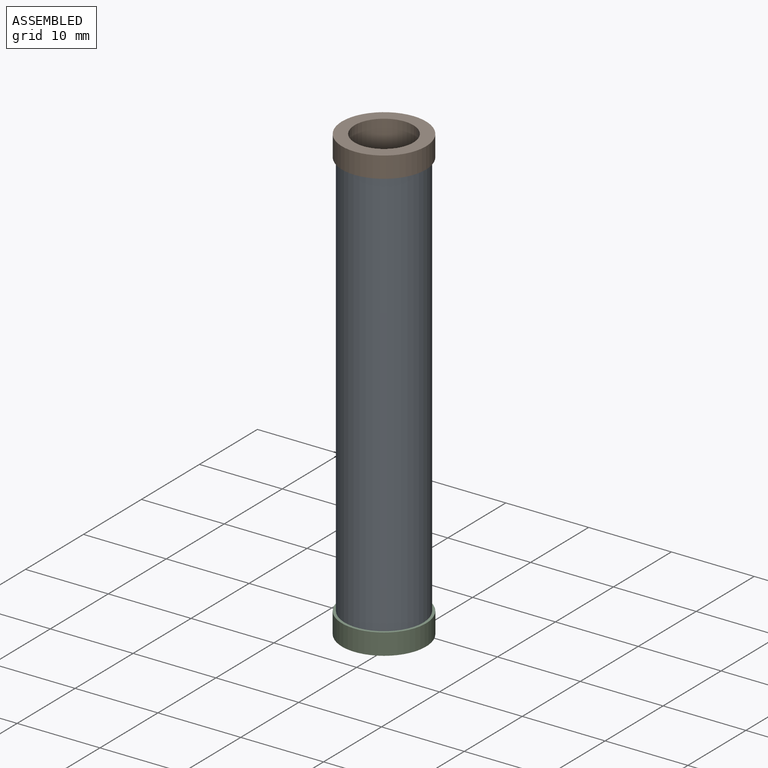
[diagram: assembled view]
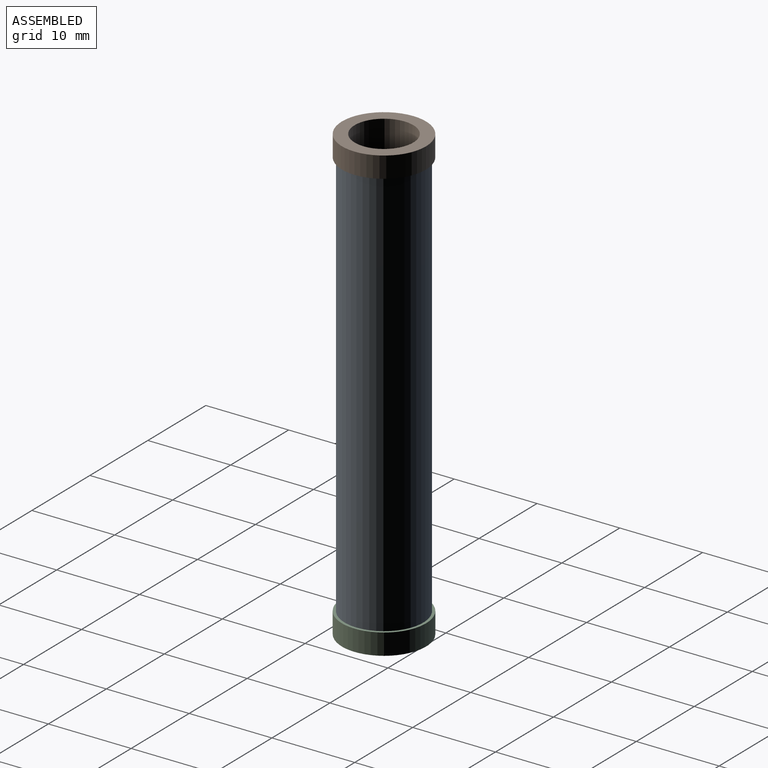
[diagram: assembled view, second angle]
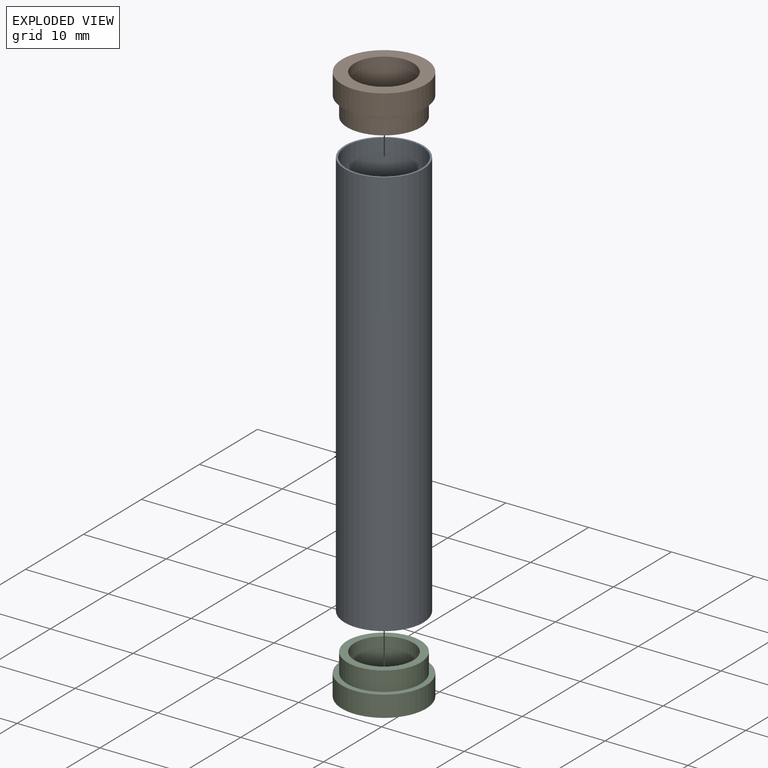
[diagram: exploded view]
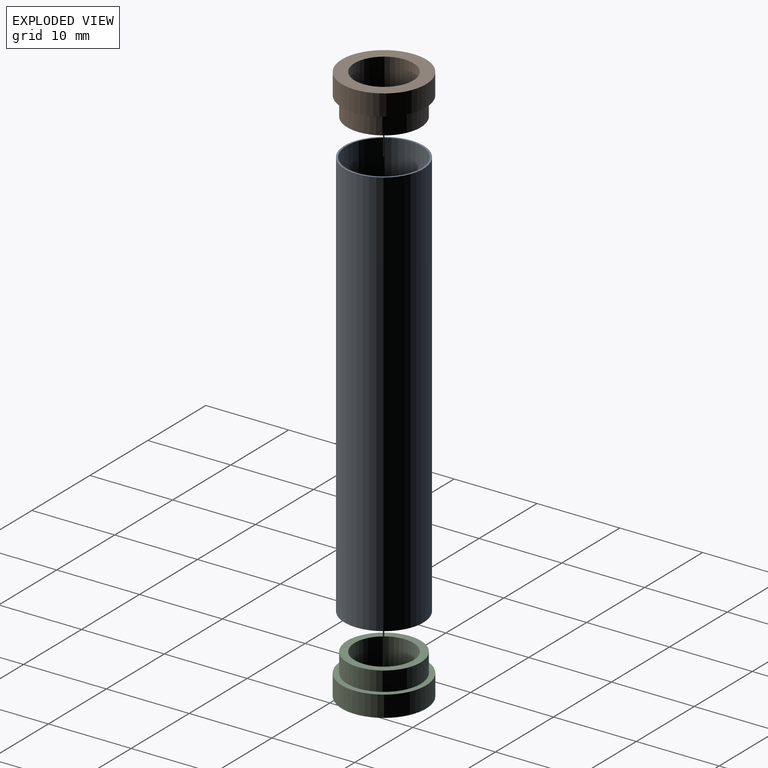
[diagram: exploded view, second angle]
ASSEMBLY  parts=3 mates=2
PART A: 4 faces, bbox 9.5x9.5x49.5 mm
  f0: cylinder r=4.55mm len=49.53mm, axis (0,0,-1), area 1416mm2, adj f2,f3
  f1: cylinder r=4.76mm len=49.53mm, axis (0,0,-1), area 1482.1mm2, adj f2,f3
  f2: plane 9.53x9.53mm, normal (0,0,1), area 6.2mm2, adj f0,f1
  f3: plane 9.53x9.53mm, normal (0,0,-1), area 6.2mm2, adj f0,f1
PART B: 6 faces, bbox 10.2x10.2x4.9 mm
  f0: cylinder r=3.55mm len=7.1mm, axis (0,0,-1), area 108.8mm2, adj f3,f5
  f1: cylinder r=5.08mm len=10.16mm, axis (0,0,-1), area 81.1mm2, adj f2,f3
  f2: plane 10.16x10.16mm, normal (0,0,1), area 19mm2, adj f1,f4
  f3: plane 10.16x10.16mm, normal (0,0,-1), area 41.5mm2, adj f0,f1
  f4: cylinder r=4.45mm len=8.89mm, axis (0,0,-1), area 65.3mm2, adj f2,f5
  f5: plane 8.89x8.89mm, normal (0,0,1), area 22.5mm2, adj f0,f4
PART C: same geometry as B
PLACE A t=(-2.87,4.53,-20.72)mm fixed
PLACE B rot(axis=(1,0,0),180deg) t=(-2.87,4.53,31.35)mm
PLACE C rot(axis=(0,0,-1),32.4deg) t=(-2.87,4.53,-23.26)mm
MATE revolute A.f1 <-> B.f4  axis (0,0,1) through (-2.87,4.53,28.81)mm
MATE revolute C.f4 <-> A.f1  axis (0,0,1) through (-2.87,4.53,-20.72)mm
